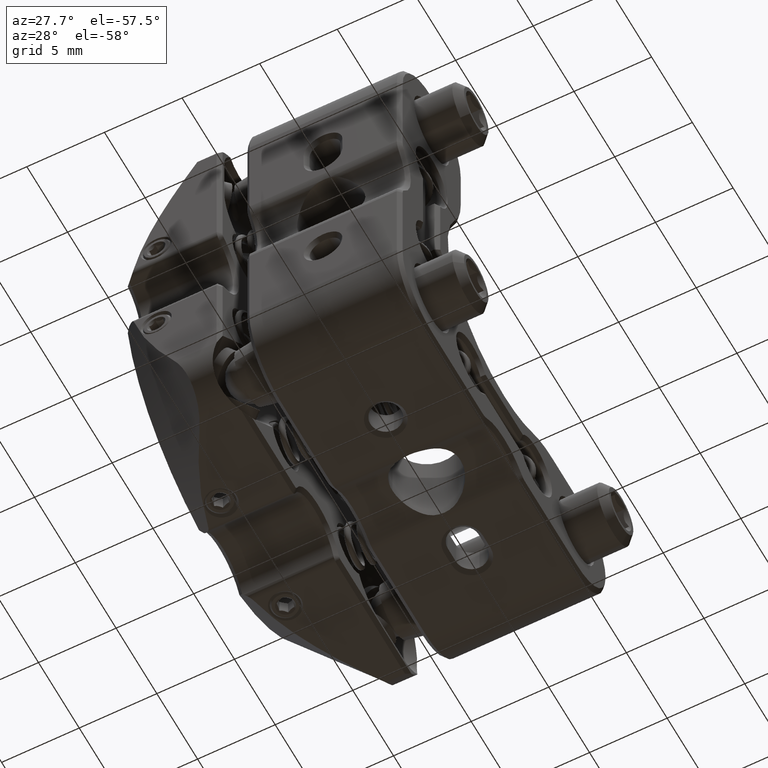
[diagram: clean part render]
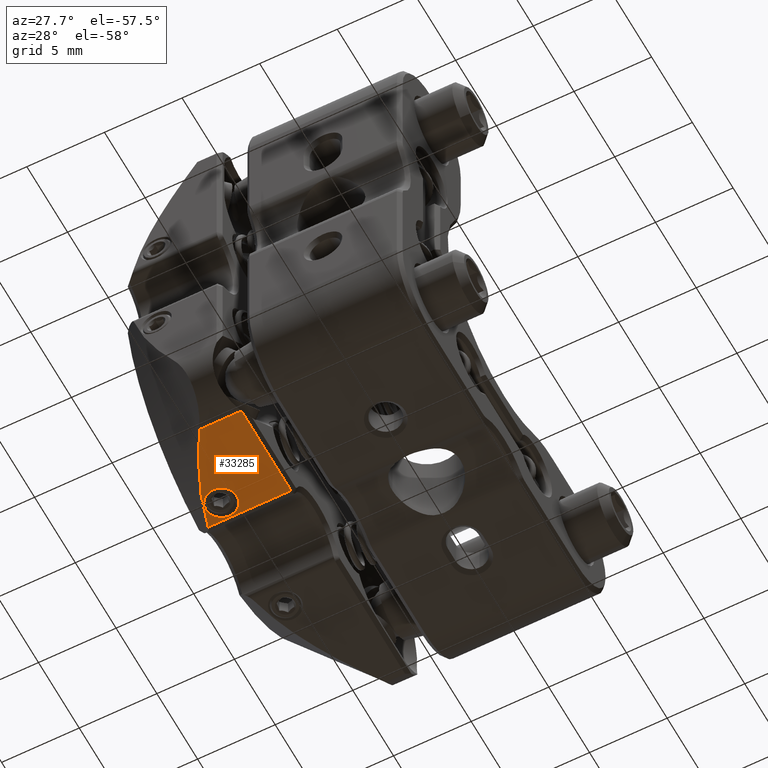
[diagram: same view with one face highlighted and labeled with its STEP entity id]
A machine part, auxiliary view. The second image highlights one B-rep face of the part: STEP entity #33285.
In plain terms, the highlighted planar face has unit normal (0, 0, -1).
Its self-contained STEP definition (entity closure, byte-faithful):
#4983 = B_SPLINE_CURVE_WITH_KNOTS ( 'NONE', 3,
 ( #31377, #61032, #89484, #31690, #68087, #68408, #24620, #74826 ),
 .UNSPECIFIED., .F., .F.,
 ( 4, 2, 2, 4 ),
 ( 0.04572886045119967102, 0.04904463430039864708, 0.05070252122499813857, 0.05236040814959762313 ),
 .UNSPECIFIED. ) ;
#7217 = DIRECTION ( 'NONE',  ( -0.000000000000000000, 1.000000000000000000, 1.468851589986613972E-16 ) ) ;
#8287 = DIRECTION ( 'NONE',  ( -1.000000000000000000, -0.000000000000000000, -0.000000000000000000 ) ) ;
#11667 = CARTESIAN_POINT ( 'NONE',  ( -7.252307585055112860, -8.887636513916278957, -11.94000000000029438 ) ) ;
#13491 = VERTEX_POINT ( 'NONE', #80825 ) ;
#14448 = DIRECTION ( 'NONE',  ( 0.000000000000000000, -7.016786371681204670E-17, 1.000000000000000000 ) ) ;
#14704 = VERTEX_POINT ( 'NONE', #50011 ) ;
#16588 = VERTEX_POINT ( 'NONE', #32552 ) ;
#19320 = EDGE_CURVE ( 'NONE', #13491, #40166, #22091, .T. ) ;
#20808 = DIRECTION ( 'NONE',  ( 1.000000000000000000, 0.000000000000000000, 0.000000000000000000 ) ) ;
#21893 = CARTESIAN_POINT ( 'NONE',  ( -7.250000000000002665, -2.828427124746603294, -11.94000000000029438 ) ) ;
#22091 = LINE ( 'NONE', #48529, #23294 ) ;
#23294 = VECTOR ( 'NONE', #55850, 1000.000000000000000 ) ;
#23376 = CARTESIAN_POINT ( 'NONE',  ( -7.250000000000002665, -2.828427124746599741, -11.94000000000029438 ) ) ;
#23813 = EDGE_CURVE ( 'NONE', #78606, #25512, #56120, .T. ) ;
#24620 = CARTESIAN_POINT ( 'NONE',  ( -10.24157707966535824, -8.425391426366740433, -11.94000000000029615 ) ) ;
#25512 = VERTEX_POINT ( 'NONE', #43059 ) ;
#26668 = CARTESIAN_POINT ( 'NONE',  ( -7.254597701931315257, -8.893813610489196719, -11.94000000000029438 ) ) ;
#28642 = AXIS2_PLACEMENT_3D ( 'NONE', #58243, #14448, #51563 ) ;
#30368 = EDGE_LOOP ( 'NONE', ( #73921, #93672, #64640, #58059, #35406 ) ) ;
#31377 = CARTESIAN_POINT ( 'NONE',  ( -12.57956398492702554, -2.828427124746603294, -11.94000000000029438 ) ) ;
#31690 = CARTESIAN_POINT ( 'NONE',  ( -11.28252720608028881, -6.458962309821002279, -11.94000000000029438 ) ) ;
#32552 = CARTESIAN_POINT ( 'NONE',  ( -12.15000000000000036, -3.935000000000417497, -11.94000000000029260 ) ) ;
#33285 = ADVANCED_FACE ( 'NONE', ( #53265, #47625 ), #57089, .T. ) ;
#34702 = CARTESIAN_POINT ( 'NONE',  ( -7.256870038142319679, -8.900000000000412470, -11.94000000000029438 ) ) ;
#35406 = ORIENTED_EDGE ( 'NONE', *, *, #37408, .F. ) ;
#37408 = EDGE_CURVE ( 'NONE', #62431, #78606, #61700, .T. ) ;
#38352 = CARTESIAN_POINT ( 'NONE',  ( -58.29114380219978386, -2.828427124746599741, -11.94000000000029438 ) ) ;
#40166 = VERTEX_POINT ( 'NONE', #46264 ) ;
#42260 = DIRECTION ( 'NONE',  ( 0.000000000000000000, -7.016786371681204670E-17, 1.000000000000000000 ) ) ;
#42293 = VECTOR ( 'NONE', #51317, 1000.000000000000000 ) ;
#43059 = CARTESIAN_POINT ( 'NONE',  ( -12.57956398492702554, -2.828427124746603294, -11.94000000000029438 ) ) ;
#46264 = CARTESIAN_POINT ( 'NONE',  ( -7.256870038142319679, -8.900000000000412470, -11.94000000000029438 ) ) ;
#47376 = ORIENTED_EDGE ( 'NONE', *, *, #59905, .T. ) ;
#47625 = FACE_OUTER_BOUND ( 'NONE', #30368, .T. ) ;
#48529 = CARTESIAN_POINT ( 'NONE',  ( -7.000000000000002665, -8.900000000000412470, -11.94000000000029438 ) ) ;
#50011 = CARTESIAN_POINT ( 'NONE',  ( -10.14999999999999858, -3.935000000000417497, -11.94000000000029260 ) ) ;
#51317 = DIRECTION ( 'NONE',  ( -0.000000000000000000, 1.000000000000000000, 1.468851589986613972E-16 ) ) ;
#51563 = DIRECTION ( 'NONE',  ( 1.000000000000000000, 0.000000000000000000, 0.000000000000000000 ) ) ;
#53265 = FACE_BOUND ( 'NONE', #58930, .T. ) ;
#53425 = EDGE_CURVE ( 'NONE', #16588, #14704, #60854, .T. ) ;
#55850 = DIRECTION ( 'NONE',  ( 1.000000000000000000, 0.000000000000000000, 0.000000000000000000 ) ) ;
#55949 = AXIS2_PLACEMENT_3D ( 'NONE', #57244, #42260, #20808 ) ;
#56120 = LINE ( 'NONE', #38352, #92689 ) ;
#57089 = PLANE ( 'NONE',  #79599 ) ;
#57244 = CARTESIAN_POINT ( 'NONE',  ( -11.15000000000000036, -3.935000000000417497, -11.94000000000029260 ) ) ;
#58059 = ORIENTED_EDGE ( 'NONE', *, *, #23813, .F. ) ;
#58243 = CARTESIAN_POINT ( 'NONE',  ( -11.15000000000000036, -3.935000000000417497, -11.94000000000029260 ) ) ;
#58773 = EDGE_CURVE ( 'NONE', #62431, #40166, #93704, .T. ) ;
#58930 = EDGE_LOOP ( 'NONE', ( #47376, #88003 ) ) ;
#59905 = EDGE_CURVE ( 'NONE', #14704, #16588, #84379, .T. ) ;
#60854 = CIRCLE ( 'NONE', #55949, 1.000000000000000888 ) ;
#61032 = CARTESIAN_POINT ( 'NONE',  ( -12.33199525965216736, -3.902443201116610361, -11.94000000000029438 ) ) ;
#61700 = LINE ( 'NONE', #21893, #42293 ) ;
#62431 = VERTEX_POINT ( 'NONE', #71312 ) ;
#64414 = CARTESIAN_POINT ( 'NONE',  ( -58.29114380219978386, 11.17333090024160214, -11.94000000000029083 ) ) ;
#64640 = ORIENTED_EDGE ( 'NONE', *, *, #70416, .F. ) ;
#68087 = CARTESIAN_POINT ( 'NONE',  ( -11.03536574397859837, -6.960908491044429880, -11.94000000000029793 ) ) ;
#68408 = CARTESIAN_POINT ( 'NONE',  ( -10.51507458840940856, -7.943564310114257232, -11.94000000000029793 ) ) ;
#70416 = EDGE_CURVE ( 'NONE', #25512, #13491, #4983, .T. ) ;
#71312 = CARTESIAN_POINT ( 'NONE',  ( -7.249999999997151612, -8.881468546964415012, -11.94000000000029438 ) ) ;
#73921 = ORIENTED_EDGE ( 'NONE', *, *, #58773, .T. ) ;
#74826 = CARTESIAN_POINT ( 'NONE',  ( -9.957934998798867454, -8.900000000000412470, -11.94000000000029438 ) ) ;
#78606 = VERTEX_POINT ( 'NONE', #23376 ) ;
#79599 = AXIS2_PLACEMENT_3D ( 'NONE', #64414, #87389, #7217 ) ;
#80825 = CARTESIAN_POINT ( 'NONE',  ( -9.957934998798867454, -8.900000000000412470, -11.94000000000029438 ) ) ;
#84379 = CIRCLE ( 'NONE', #28642, 1.000000000000000888 ) ;
#84526 = CARTESIAN_POINT ( 'NONE',  ( -7.249999999997151612, -8.881468546964415012, -11.94000000000029438 ) ) ;
#87389 = DIRECTION ( 'NONE',  ( 0.000000000000000000, 1.468851589986613972E-16, -1.000000000000000000 ) ) ;
#88003 = ORIENTED_EDGE ( 'NONE', *, *, #53425, .T. ) ;
#89484 = CARTESIAN_POINT ( 'NONE',  ( -11.96047170001510906, -4.939457887242279632, -11.94000000000029615 ) ) ;
#92689 = VECTOR ( 'NONE', #8287, 1000.000000000000000 ) ;
#93672 = ORIENTED_EDGE ( 'NONE', *, *, #19320, .F. ) ;
#93704 = B_SPLINE_CURVE_WITH_KNOTS ( 'NONE', 3,
 ( #84526, #11667, #26668, #34702 ),
 .UNSPECIFIED., .F., .F.,
 ( 4, 4 ),
 ( 0.003190853659421584616, 0.003210602393144733249 ),
 .UNSPECIFIED. ) ;